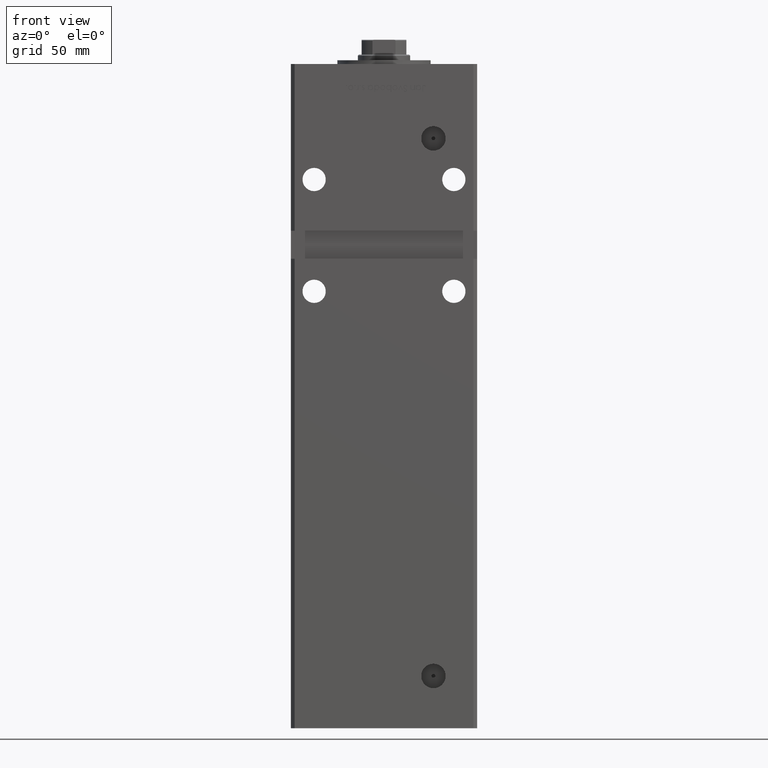
[diagram: clean part render]
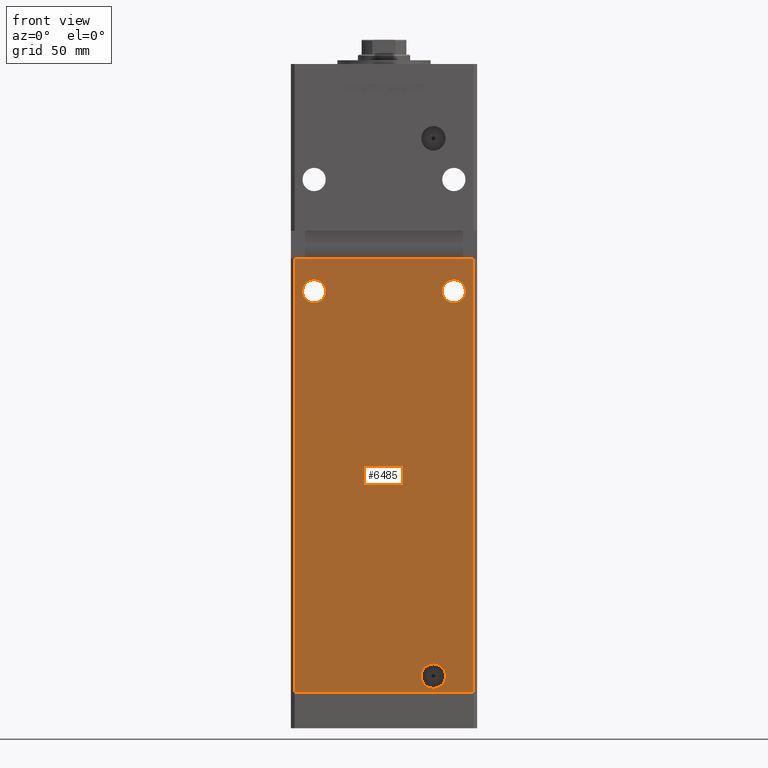
[diagram: same view with one face highlighted and labeled with its STEP entity id]
A machine part, front view. The second image highlights one B-rep face of the part: STEP entity #6485.
In plain terms, the highlighted planar face has unit normal (0, 1, 0).
Its self-contained STEP definition (entity closure, byte-faithful):
#635 = EDGE_LOOP ( 'NONE', ( #42618, #26609 ) ) ;
#711 = VERTEX_POINT ( 'NONE', #30819 ) ;
#1152 = ORIENTED_EDGE ( 'NONE', *, *, #16839, .T. ) ;
#1874 = CIRCLE ( 'NONE', #7862, 6.250000000000005329 ) ;
#2125 = EDGE_CURVE ( 'NONE', #40339, #15769, #1874, .T. ) ;
#2574 = DIRECTION ( 'NONE',  ( 0.000000000000000000, 0.000000000000000000, 1.000000000000000000 ) ) ;
#4191 = DIRECTION ( 'NONE',  ( -0.000000000000000000, -0.000000000000000000, -1.000000000000000000 ) ) ;
#5768 = EDGE_LOOP ( 'NONE', ( #49078, #18678 ) ) ;
#6378 = CARTESIAN_POINT ( 'NONE',  ( 47.99999999999998579, -43.50000000000000000, 0.000000000000000000 ) ) ;
#6401 = CARTESIAN_POINT ( 'NONE',  ( -37.50000000000000000, -43.50000000000000000, 209.2500000000000000 ) ) ;
#6485 = ADVANCED_FACE ( 'NONE', ( #11976, #19813, #44256, #20082 ), #45302, .F. ) ;
#6853 = AXIS2_PLACEMENT_3D ( 'NONE', #10237, #47063, #25888 ) ;
#7278 = VERTEX_POINT ( 'NONE', #6378 ) ;
#7345 = ORIENTED_EDGE ( 'NONE', *, *, #46753, .F. ) ;
#7482 = CARTESIAN_POINT ( 'NONE',  ( 26.49999999999998934, -43.50000000000000000, 2.420000000000013252 ) ) ;
#7497 = DIRECTION ( 'NONE',  ( 1.000000000000000000, 0.000000000000000000, 0.000000000000000000 ) ) ;
#7862 = AXIS2_PLACEMENT_3D ( 'NONE', #47193, #22246, #2574 ) ;
#9419 = DIRECTION ( 'NONE',  ( 0.000000000000000000, 0.000000000000000000, -1.000000000000000000 ) ) ;
#10237 = CARTESIAN_POINT ( 'NONE',  ( 37.50000000000000000, -43.50000000000000000, 215.5000000000000000 ) ) ;
#10695 = ORIENTED_EDGE ( 'NONE', *, *, #39094, .T. ) ;
#10785 = EDGE_CURVE ( 'NONE', #47724, #20069, #20010, .T. ) ;
#10915 = CARTESIAN_POINT ( 'NONE',  ( -47.99999999999998579, -43.50000000000000000, 232.9999999999999716 ) ) ;
#11607 = VECTOR ( 'NONE', #28479, 1000.000000000000000 ) ;
#11976 = FACE_BOUND ( 'NONE', #635, .T. ) ;
#12746 = DIRECTION ( 'NONE',  ( 0.000000000000000000, 1.000000000000000000, 0.000000000000000000 ) ) ;
#15769 = VERTEX_POINT ( 'NONE', #42558 ) ;
#16687 = CIRCLE ( 'NONE', #23586, 6.579999999999994742 ) ;
#16732 = ORIENTED_EDGE ( 'NONE', *, *, #37863, .F. ) ;
#16839 = EDGE_CURVE ( 'NONE', #17933, #45504, #25231, .T. ) ;
#17933 = VERTEX_POINT ( 'NONE', #10915 ) ;
#18039 = CARTESIAN_POINT ( 'NONE',  ( 26.49999999999998934, -43.50000000000000000, 9.000000000000007105 ) ) ;
#18678 = ORIENTED_EDGE ( 'NONE', *, *, #2125, .T. ) ;
#18790 = EDGE_CURVE ( 'NONE', #24729, #7278, #28699, .T. ) ;
#18952 = VECTOR ( 'NONE', #47743, 1000.000000000000000 ) ;
#19013 = CARTESIAN_POINT ( 'NONE',  ( -49.99999999999998579, -43.50000000000000000, 232.9999999999999716 ) ) ;
#19727 = CIRCLE ( 'NONE', #6853, 6.250000000000005329 ) ;
#19813 = FACE_BOUND ( 'NONE', #5768, .T. ) ;
#20010 = CIRCLE ( 'NONE', #50017, 6.250000000000005329 ) ;
#20069 = VERTEX_POINT ( 'NONE', #42762 ) ;
#20082 = FACE_OUTER_BOUND ( 'NONE', #52800, .T. ) ;
#20497 = ORIENTED_EDGE ( 'NONE', *, *, #36845, .F. ) ;
#21102 = CARTESIAN_POINT ( 'NONE',  ( -47.99999999999998579, -43.50000000000000000, 0.000000000000000000 ) ) ;
#22246 = DIRECTION ( 'NONE',  ( 0.000000000000000000, 1.000000000000000000, 0.000000000000000000 ) ) ;
#22865 = CARTESIAN_POINT ( 'NONE',  ( -47.99999999999998579, -43.50000000000000000, 0.000000000000000000 ) ) ;
#23586 = AXIS2_PLACEMENT_3D ( 'NONE', #18039, #29628, #9419 ) ;
#24660 = CARTESIAN_POINT ( 'NONE',  ( 47.99999999999998579, -43.50000000000000000, 318.5000000000000000 ) ) ;
#24729 = VERTEX_POINT ( 'NONE', #30382 ) ;
#25200 = AXIS2_PLACEMENT_3D ( 'NONE', #28418, #49065, #48546 ) ;
#25231 = LINE ( 'NONE', #37569, #11607 ) ;
#25407 = CARTESIAN_POINT ( 'NONE',  ( -37.50000000000000000, -43.50000000000000000, 215.5000000000000000 ) ) ;
#25823 = VERTEX_POINT ( 'NONE', #7482 ) ;
#25888 = DIRECTION ( 'NONE',  ( 0.000000000000000000, 0.000000000000000000, 1.000000000000000000 ) ) ;
#26609 = ORIENTED_EDGE ( 'NONE', *, *, #10785, .T. ) ;
#26752 = VECTOR ( 'NONE', #7497, 1000.000000000000000 ) ;
#27407 = AXIS2_PLACEMENT_3D ( 'NONE', #25407, #12746, #41781 ) ;
#27847 = DIRECTION ( 'NONE',  ( 0.000000000000000000, -1.000000000000000000, 0.000000000000000000 ) ) ;
#28418 = CARTESIAN_POINT ( 'NONE',  ( -47.99999999999998579, -43.50000000000000000, 318.5000000000000000 ) ) ;
#28479 = DIRECTION ( 'NONE',  ( -0.000000000000000000, -0.000000000000000000, -1.000000000000000000 ) ) ;
#28699 = LINE ( 'NONE', #24660, #41800 ) ;
#29628 = DIRECTION ( 'NONE',  ( 0.000000000000000000, -1.000000000000000000, 0.000000000000000000 ) ) ;
#30382 = CARTESIAN_POINT ( 'NONE',  ( 47.99999999999998579, -43.50000000000000000, 232.9999999999999716 ) ) ;
#30539 = EDGE_CURVE ( 'NONE', #20069, #47724, #37753, .T. ) ;
#30578 = EDGE_LOOP ( 'NONE', ( #7345, #16732 ) ) ;
#30819 = CARTESIAN_POINT ( 'NONE',  ( 26.49999999999998934, -43.50000000000000000, 15.58000000000000362 ) ) ;
#31339 = DIRECTION ( 'NONE',  ( 0.000000000000000000, 0.000000000000000000, -1.000000000000000000 ) ) ;
#33005 = EDGE_CURVE ( 'NONE', #15769, #40339, #19727, .T. ) ;
#33316 = DIRECTION ( 'NONE',  ( 0.000000000000000000, 0.000000000000000000, 1.000000000000000000 ) ) ;
#35294 = AXIS2_PLACEMENT_3D ( 'NONE', #38869, #27847, #31339 ) ;
#35407 = LINE ( 'NONE', #19013, #18952 ) ;
#36845 = EDGE_CURVE ( 'NONE', #17933, #24729, #35407, .T. ) ;
#37347 = DIRECTION ( 'NONE',  ( 0.000000000000000000, 1.000000000000000000, 0.000000000000000000 ) ) ;
#37569 = CARTESIAN_POINT ( 'NONE',  ( -47.99999999999998579, -43.50000000000000000, 318.5000000000000000 ) ) ;
#37753 = CIRCLE ( 'NONE', #27407, 6.250000000000005329 ) ;
#37863 = EDGE_CURVE ( 'NONE', #711, #25823, #38756, .T. ) ;
#38756 = CIRCLE ( 'NONE', #35294, 6.579999999999994742 ) ;
#38869 = CARTESIAN_POINT ( 'NONE',  ( 26.49999999999998934, -43.50000000000000000, 9.000000000000007105 ) ) ;
#39094 = EDGE_CURVE ( 'NONE', #45504, #7278, #43790, .T. ) ;
#40339 = VERTEX_POINT ( 'NONE', #42628 ) ;
#41372 = CARTESIAN_POINT ( 'NONE',  ( -37.50000000000000000, -43.50000000000000000, 215.5000000000000000 ) ) ;
#41781 = DIRECTION ( 'NONE',  ( 0.000000000000000000, 0.000000000000000000, 1.000000000000000000 ) ) ;
#41800 = VECTOR ( 'NONE', #4191, 1000.000000000000000 ) ;
#42558 = CARTESIAN_POINT ( 'NONE',  ( 37.50000000000000000, -43.50000000000000000, 221.7500000000000000 ) ) ;
#42618 = ORIENTED_EDGE ( 'NONE', *, *, #30539, .T. ) ;
#42628 = CARTESIAN_POINT ( 'NONE',  ( 37.50000000000000000, -43.50000000000000000, 209.2500000000000000 ) ) ;
#42762 = CARTESIAN_POINT ( 'NONE',  ( -37.50000000000000000, -43.50000000000000000, 221.7500000000000000 ) ) ;
#43790 = LINE ( 'NONE', #22865, #26752 ) ;
#44256 = FACE_BOUND ( 'NONE', #30578, .T. ) ;
#45302 = PLANE ( 'NONE',  #25200 ) ;
#45504 = VERTEX_POINT ( 'NONE', #21102 ) ;
#46274 = ORIENTED_EDGE ( 'NONE', *, *, #18790, .F. ) ;
#46753 = EDGE_CURVE ( 'NONE', #25823, #711, #16687, .T. ) ;
#47063 = DIRECTION ( 'NONE',  ( 0.000000000000000000, 1.000000000000000000, 0.000000000000000000 ) ) ;
#47193 = CARTESIAN_POINT ( 'NONE',  ( 37.50000000000000000, -43.50000000000000000, 215.5000000000000000 ) ) ;
#47724 = VERTEX_POINT ( 'NONE', #6401 ) ;
#47743 = DIRECTION ( 'NONE',  ( 1.000000000000000000, 0.000000000000000000, 0.000000000000000000 ) ) ;
#48546 = DIRECTION ( 'NONE',  ( 0.000000000000000000, -0.000000000000000000, 1.000000000000000000 ) ) ;
#49065 = DIRECTION ( 'NONE',  ( 0.000000000000000000, 1.000000000000000000, 0.000000000000000000 ) ) ;
#49078 = ORIENTED_EDGE ( 'NONE', *, *, #33005, .T. ) ;
#50017 = AXIS2_PLACEMENT_3D ( 'NONE', #41372, #37347, #33316 ) ;
#52800 = EDGE_LOOP ( 'NONE', ( #46274, #20497, #1152, #10695 ) ) ;